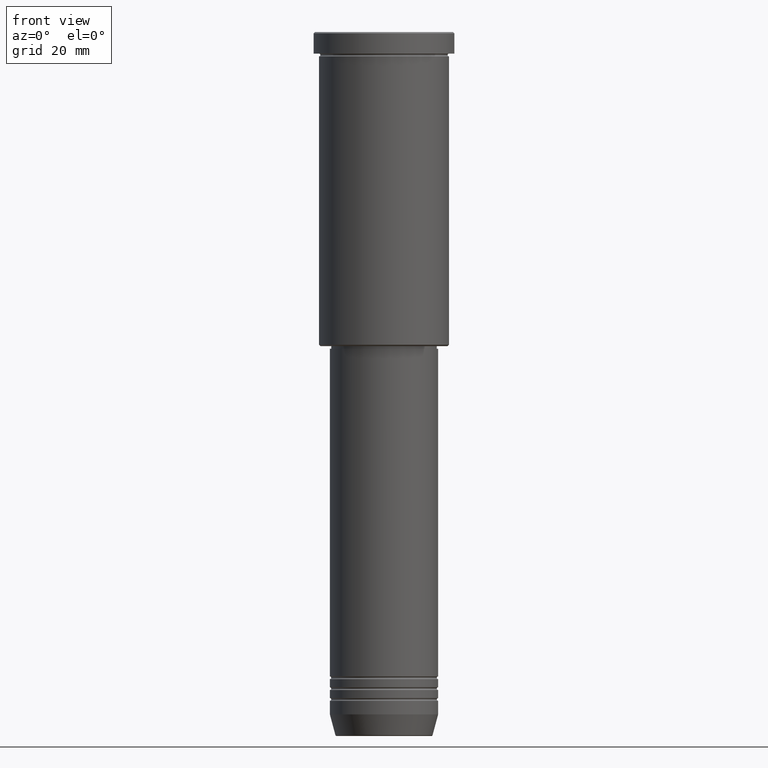
[diagram: clean part render]
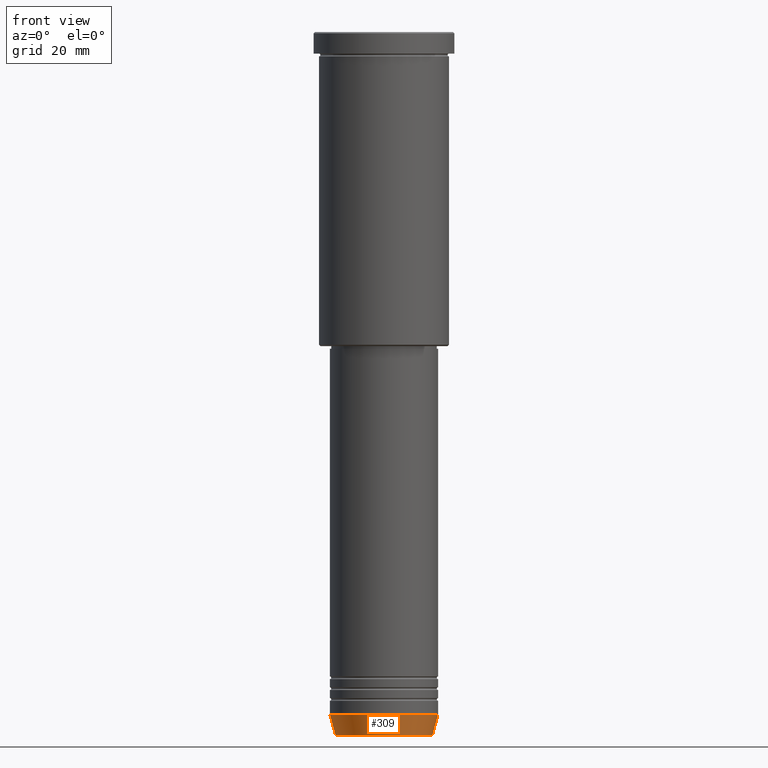
[diagram: same view with one face highlighted and labeled with its STEP entity id]
A machine part, front view. The second image highlights one B-rep face of the part: STEP entity #309.
In plain terms, the highlighted conical surface has half-angle 15 deg.
Its self-contained STEP definition (entity closure, byte-faithful):
#6 = VECTOR ( 'NONE', #527, 1000.000000000000114 ) ;
#55 = DIRECTION ( 'NONE',  ( 1.000000000000000000, 0.000000000000000000, 0.000000000000000000 ) ) ;
#62 = DIRECTION ( 'NONE',  ( -0.000000000000000000, -0.000000000000000000, 1.000000000000000000 ) ) ;
#67 = CARTESIAN_POINT ( 'NONE',  ( 0.000000000000000000, 0.000000000000000000, -259.6294095225512706 ) ) ;
#87 = CARTESIAN_POINT ( 'NONE',  ( 17.95570587970608045, 0.000000000000000000, -259.6294095225512706 ) ) ;
#88 = VERTEX_POINT ( 'NONE', #520 ) ;
#138 = CARTESIAN_POINT ( 'NONE',  ( 0.000000000000000000, 0.000000000000000000, -252.0000000000000000 ) ) ;
#139 = EDGE_CURVE ( 'NONE', #661, #816, #491, .T. ) ;
#149 = CONICAL_SURFACE ( 'NONE', #728, 20.00000000000000355, 0.2617993877991499629 ) ;
#162 = CARTESIAN_POINT ( 'NONE',  ( 20.00000000000000355, 0.000000000000000000, -252.0000000000000000 ) ) ;
#173 = ORIENTED_EDGE ( 'NONE', *, *, #808, .T. ) ;
#175 = ORIENTED_EDGE ( 'NONE', *, *, #139, .T. ) ;
#212 = CARTESIAN_POINT ( 'NONE',  ( -20.00000000000000355, 2.449293598294706907E-15, -252.0000000000000000 ) ) ;
#230 = CARTESIAN_POINT ( 'NONE',  ( -20.00000000000000355, 2.449293598294706907E-15, -252.0000000000000000 ) ) ;
#241 = DIRECTION ( 'NONE',  ( 1.000000000000000000, 0.000000000000000000, 0.000000000000000000 ) ) ;
#309 = ADVANCED_FACE ( 'NONE', ( #873 ), #149, .T. ) ;
#412 = VERTEX_POINT ( 'NONE', #230 ) ;
#483 = ORIENTED_EDGE ( 'NONE', *, *, #801, .F. ) ;
#491 = CIRCLE ( 'NONE', #879, 17.95570587970608045 ) ;
#520 = CARTESIAN_POINT ( 'NONE',  ( 20.00000000000000355, 0.000000000000000000, -252.0000000000000000 ) ) ;
#527 = DIRECTION ( 'NONE',  ( 0.2588190451025212391, 0.000000000000000000, 0.9659258262890680902 ) ) ;
#631 = CIRCLE ( 'NONE', #1075, 20.00000000000000355 ) ;
#636 = DIRECTION ( 'NONE',  ( 1.000000000000000000, 0.000000000000000000, 0.000000000000000000 ) ) ;
#661 = VERTEX_POINT ( 'NONE', #1123 ) ;
#667 = ORIENTED_EDGE ( 'NONE', *, *, #1020, .F. ) ;
#672 = DIRECTION ( 'NONE',  ( -0.000000000000000000, -0.000000000000000000, 1.000000000000000000 ) ) ;
#728 = AXIS2_PLACEMENT_3D ( 'NONE', #138, #672, #55 ) ;
#801 = EDGE_CURVE ( 'NONE', #412, #88, #631, .T. ) ;
#808 = EDGE_CURVE ( 'NONE', #816, #88, #985, .T. ) ;
#816 = VERTEX_POINT ( 'NONE', #87 ) ;
#873 = FACE_OUTER_BOUND ( 'NONE', #890, .T. ) ;
#879 = AXIS2_PLACEMENT_3D ( 'NONE', #67, #62, #241 ) ;
#890 = EDGE_LOOP ( 'NONE', ( #667, #175, #173, #483 ) ) ;
#893 = CARTESIAN_POINT ( 'NONE',  ( 0.000000000000000000, 0.000000000000000000, -252.0000000000000000 ) ) ;
#963 = VECTOR ( 'NONE', #1132, 1000.000000000000114 ) ;
#985 = LINE ( 'NONE', #162, #6 ) ;
#990 = DIRECTION ( 'NONE',  ( -0.000000000000000000, -0.000000000000000000, 1.000000000000000000 ) ) ;
#1020 = EDGE_CURVE ( 'NONE', #661, #412, #1043, .T. ) ;
#1043 = LINE ( 'NONE', #212, #963 ) ;
#1075 = AXIS2_PLACEMENT_3D ( 'NONE', #893, #990, #636 ) ;
#1123 = CARTESIAN_POINT ( 'NONE',  ( -17.95570587970608045, 2.324116685748021371E-15, -259.6294095225512706 ) ) ;
#1132 = DIRECTION ( 'NONE',  ( -0.2588190451025212391, 3.169619151431771721E-17, 0.9659258262890680902 ) ) ;